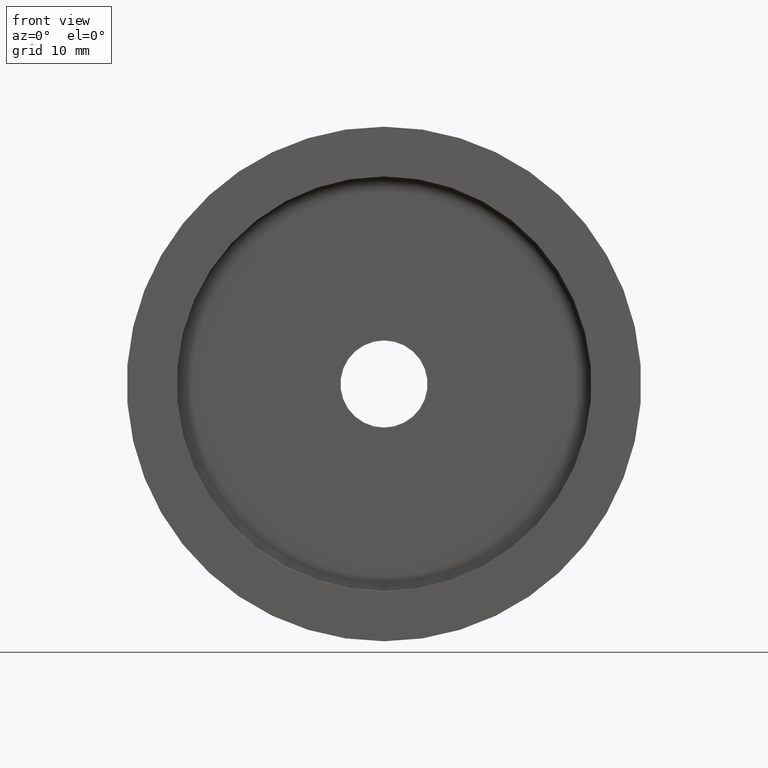
[diagram: clean part render]
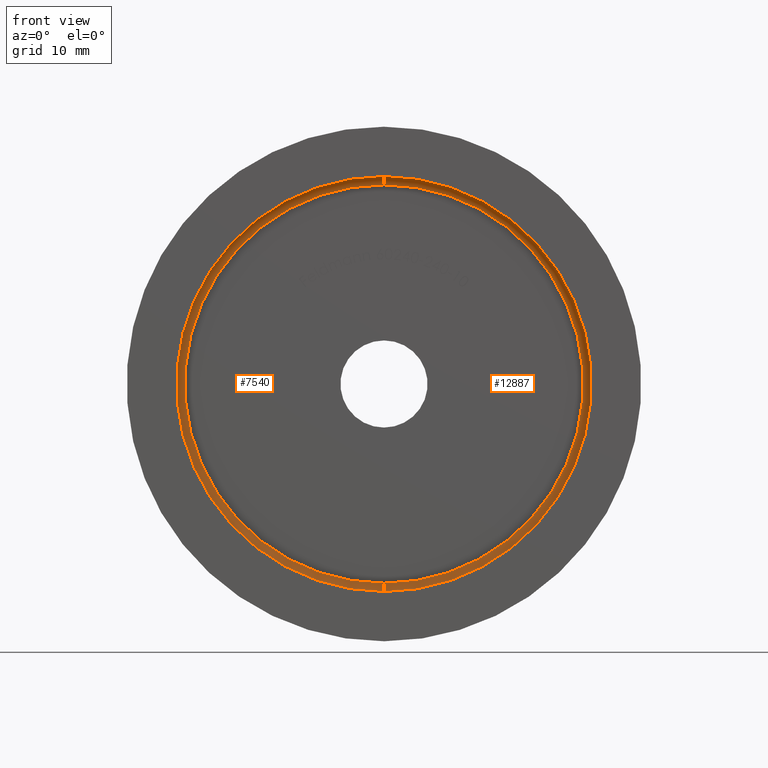
[diagram: same view with one multi-face feature highlighted, each face labeled with its STEP entity id]
A machine part, front view. The highlighted faces form ONE feature: a constant-radius fillet chain: 2 tangent blend faces with common blend radius 1 mm. The faces share edges in the B-rep.
Their STEP definitions:
[1] entity #7540 (Torus):
#307 = EDGE_CURVE ( 'NONE', #4523, #4644, #2303, .T. ) ;
#309 = VERTEX_POINT ( 'NONE', #10844 ) ;
#871 = ORIENTED_EDGE ( 'NONE', *, *, #10486, .F. ) ;
#1128 = CARTESIAN_POINT ( 'NONE',  ( 0.000000000000000000, 4.000000000000003553, 0.000000000000000000 ) ) ;
#1136 = CARTESIAN_POINT ( 'NONE',  ( 0.000000000000000000, 4.999999999999996447, 0.000000000000000000 ) ) ;
#1536 = EDGE_CURVE ( 'NONE', #4523, #309, #12691, .T. ) ;
#2303 = CIRCLE ( 'NONE', #5944, 25.00000000000000000 ) ;
#2685 = DIRECTION ( 'NONE',  ( 1.000000000000000000, 0.000000000000000000, 1.224646799147353207E-16 ) ) ;
#2727 = CIRCLE ( 'NONE', #2895, 1.000000000000000888 ) ;
#2800 = ORIENTED_EDGE ( 'NONE', *, *, #1536, .T. ) ;
#2895 = AXIS2_PLACEMENT_3D ( 'NONE', #13266, #7692, #10994 ) ;
#3105 = FACE_OUTER_BOUND ( 'NONE', #11150, .T. ) ;
#3169 = DIRECTION ( 'NONE',  ( -0.000000000000000000, 1.000000000000000000, -0.000000000000000000 ) ) ;
#4523 = VERTEX_POINT ( 'NONE', #5686 ) ;
#4644 = VERTEX_POINT ( 'NONE', #9019 ) ;
#5350 = DIRECTION ( 'NONE',  ( -0.000000000000000000, 1.000000000000000000, -0.000000000000000000 ) ) ;
#5650 = DIRECTION ( 'NONE',  ( 0.000000000000000000, -1.000000000000000000, 0.000000000000000000 ) ) ;
#5686 = CARTESIAN_POINT ( 'NONE',  ( 0.000000000000000000, 4.000000000000003553, -25.00000000000000000 ) ) ;
#5944 = AXIS2_PLACEMENT_3D ( 'NONE', #1128, #3169, #10892 ) ;
#6339 = CIRCLE ( 'NONE', #8226, 24.00000000000000000 ) ;
#6615 = CARTESIAN_POINT ( 'NONE',  ( 0.000000000000000000, 4.000000000000003553, 0.000000000000000000 ) ) ;
#7171 = AXIS2_PLACEMENT_3D ( 'NONE', #6615, #5350, #8707 ) ;
#7228 = CARTESIAN_POINT ( 'NONE',  ( 2.939152317953647894E-15, 4.000000000000003553, -24.00000000000000000 ) ) ;
#7540 = ADVANCED_FACE ( 'NONE', ( #3105 ), #11420, .F. ) ;
#7692 = DIRECTION ( 'NONE',  ( -1.000000000000000000, 0.000000000000000000, 0.000000000000000000 ) ) ;
#7880 = DIRECTION ( 'NONE',  ( 0.000000000000000000, 0.000000000000000000, 1.000000000000000000 ) ) ;
#8226 = AXIS2_PLACEMENT_3D ( 'NONE', #1136, #5650, #7880 ) ;
#8353 = DIRECTION ( 'NONE',  ( 1.224646799147353454E-16, 0.000000000000000000, -1.000000000000000000 ) ) ;
#8707 = DIRECTION ( 'NONE',  ( 0.000000000000000000, 0.000000000000000000, 1.000000000000000000 ) ) ;
#9019 = CARTESIAN_POINT ( 'NONE',  ( 3.061616997868383043E-15, 4.000000000000003553, 25.00000000000000000 ) ) ;
#9443 = AXIS2_PLACEMENT_3D ( 'NONE', #7228, #2685, #8353 ) ;
#9882 = CARTESIAN_POINT ( 'NONE',  ( 0.000000000000000000, 4.999999999999996447, 24.00000000000000000 ) ) ;
#10249 = ORIENTED_EDGE ( 'NONE', *, *, #307, .F. ) ;
#10486 = EDGE_CURVE ( 'NONE', #4644, #12460, #2727, .T. ) ;
#10844 = CARTESIAN_POINT ( 'NONE',  ( 3.000384657911015469E-15, 4.999999999999996447, -24.00000000000000000 ) ) ;
#10892 = DIRECTION ( 'NONE',  ( 0.000000000000000000, 0.000000000000000000, 1.000000000000000000 ) ) ;
#10994 = DIRECTION ( 'NONE',  ( 0.000000000000000000, 0.000000000000000000, 1.000000000000000000 ) ) ;
#11150 = EDGE_LOOP ( 'NONE', ( #10249, #2800, #13636, #871 ) ) ;
#11420 = TOROIDAL_SURFACE ( 'NONE', #7171, 24.00000000000000000, 1.000000000000000000 ) ;
#12460 = VERTEX_POINT ( 'NONE', #9882 ) ;
#12552 = EDGE_CURVE ( 'NONE', #12460, #309, #6339, .T. ) ;
#12691 = CIRCLE ( 'NONE', #9443, 1.000000000000000888 ) ;
#13266 = CARTESIAN_POINT ( 'NONE',  ( 0.000000000000000000, 4.000000000000003553, 24.00000000000000000 ) ) ;
#13636 = ORIENTED_EDGE ( 'NONE', *, *, #12552, .F. ) ;
[2] entity #12887 (Torus):
#309 = VERTEX_POINT ( 'NONE', #10844 ) ;
#1160 = CARTESIAN_POINT ( 'NONE',  ( 0.000000000000000000, 4.999999999999996447, 0.000000000000000000 ) ) ;
#1393 = ORIENTED_EDGE ( 'NONE', *, *, #1536, .F. ) ;
#1536 = EDGE_CURVE ( 'NONE', #4523, #309, #12691, .T. ) ;
#1588 = AXIS2_PLACEMENT_3D ( 'NONE', #1160, #14263, #2136 ) ;
#1833 = FACE_OUTER_BOUND ( 'NONE', #11868, .T. ) ;
#1956 = CIRCLE ( 'NONE', #3526, 25.00000000000000000 ) ;
#1997 = EDGE_CURVE ( 'NONE', #4644, #4523, #1956, .T. ) ;
#2136 = DIRECTION ( 'NONE',  ( 0.000000000000000000, 0.000000000000000000, 1.000000000000000000 ) ) ;
#2180 = TOROIDAL_SURFACE ( 'NONE', #2464, 24.00000000000000000, 1.000000000000000000 ) ;
#2464 = AXIS2_PLACEMENT_3D ( 'NONE', #12235, #5629, #13345 ) ;
#2685 = DIRECTION ( 'NONE',  ( 1.000000000000000000, 0.000000000000000000, 1.224646799147353207E-16 ) ) ;
#2727 = CIRCLE ( 'NONE', #2895, 1.000000000000000888 ) ;
#2895 = AXIS2_PLACEMENT_3D ( 'NONE', #13266, #7692, #10994 ) ;
#3526 = AXIS2_PLACEMENT_3D ( 'NONE', #8127, #11534, #11440 ) ;
#4523 = VERTEX_POINT ( 'NONE', #5686 ) ;
#4644 = VERTEX_POINT ( 'NONE', #9019 ) ;
#5335 = EDGE_CURVE ( 'NONE', #309, #12460, #8246, .T. ) ;
#5629 = DIRECTION ( 'NONE',  ( -0.000000000000000000, 1.000000000000000000, -0.000000000000000000 ) ) ;
#5686 = CARTESIAN_POINT ( 'NONE',  ( 0.000000000000000000, 4.000000000000003553, -25.00000000000000000 ) ) ;
#7228 = CARTESIAN_POINT ( 'NONE',  ( 2.939152317953647894E-15, 4.000000000000003553, -24.00000000000000000 ) ) ;
#7692 = DIRECTION ( 'NONE',  ( -1.000000000000000000, 0.000000000000000000, 0.000000000000000000 ) ) ;
#8127 = CARTESIAN_POINT ( 'NONE',  ( 0.000000000000000000, 4.000000000000003553, 0.000000000000000000 ) ) ;
#8246 = CIRCLE ( 'NONE', #1588, 24.00000000000000000 ) ;
#8353 = DIRECTION ( 'NONE',  ( 1.224646799147353454E-16, 0.000000000000000000, -1.000000000000000000 ) ) ;
#9019 = CARTESIAN_POINT ( 'NONE',  ( 3.061616997868383043E-15, 4.000000000000003553, 25.00000000000000000 ) ) ;
#9130 = ORIENTED_EDGE ( 'NONE', *, *, #1997, .F. ) ;
#9443 = AXIS2_PLACEMENT_3D ( 'NONE', #7228, #2685, #8353 ) ;
#9829 = ORIENTED_EDGE ( 'NONE', *, *, #5335, .F. ) ;
#9882 = CARTESIAN_POINT ( 'NONE',  ( 0.000000000000000000, 4.999999999999996447, 24.00000000000000000 ) ) ;
#9925 = ORIENTED_EDGE ( 'NONE', *, *, #10486, .T. ) ;
#10486 = EDGE_CURVE ( 'NONE', #4644, #12460, #2727, .T. ) ;
#10844 = CARTESIAN_POINT ( 'NONE',  ( 3.000384657911015469E-15, 4.999999999999996447, -24.00000000000000000 ) ) ;
#10994 = DIRECTION ( 'NONE',  ( 0.000000000000000000, 0.000000000000000000, 1.000000000000000000 ) ) ;
#11440 = DIRECTION ( 'NONE',  ( 0.000000000000000000, 0.000000000000000000, 1.000000000000000000 ) ) ;
#11534 = DIRECTION ( 'NONE',  ( -0.000000000000000000, 1.000000000000000000, -0.000000000000000000 ) ) ;
#11868 = EDGE_LOOP ( 'NONE', ( #1393, #9130, #9925, #9829 ) ) ;
#12235 = CARTESIAN_POINT ( 'NONE',  ( 0.000000000000000000, 4.000000000000003553, 0.000000000000000000 ) ) ;
#12460 = VERTEX_POINT ( 'NONE', #9882 ) ;
#12691 = CIRCLE ( 'NONE', #9443, 1.000000000000000888 ) ;
#12887 = ADVANCED_FACE ( 'NONE', ( #1833 ), #2180, .F. ) ;
#13266 = CARTESIAN_POINT ( 'NONE',  ( 0.000000000000000000, 4.000000000000003553, 24.00000000000000000 ) ) ;
#13345 = DIRECTION ( 'NONE',  ( 0.000000000000000000, 0.000000000000000000, 1.000000000000000000 ) ) ;
#14263 = DIRECTION ( 'NONE',  ( 0.000000000000000000, -1.000000000000000000, 0.000000000000000000 ) ) ;